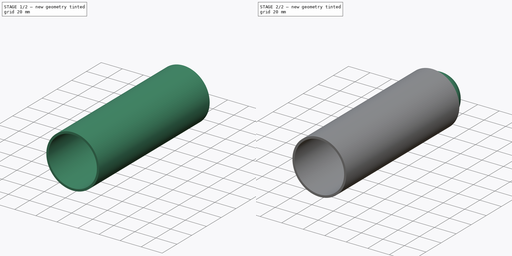
[diagram: build sequence overview — one tinted view per stage of 2, left to right]
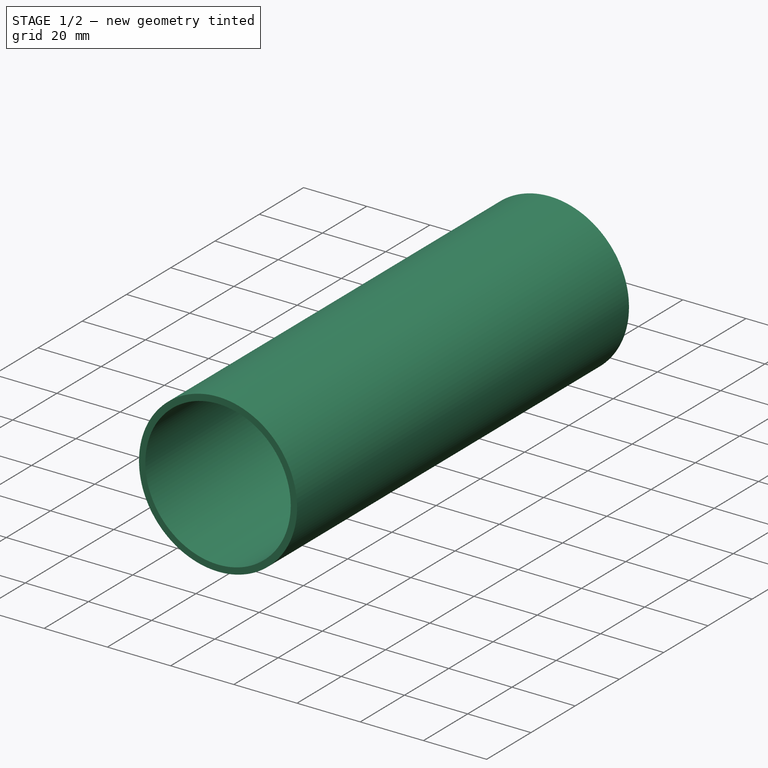
[diagram: stage 1 of 2 — iso view after this stage's code; geometry added in this stage tinted green]
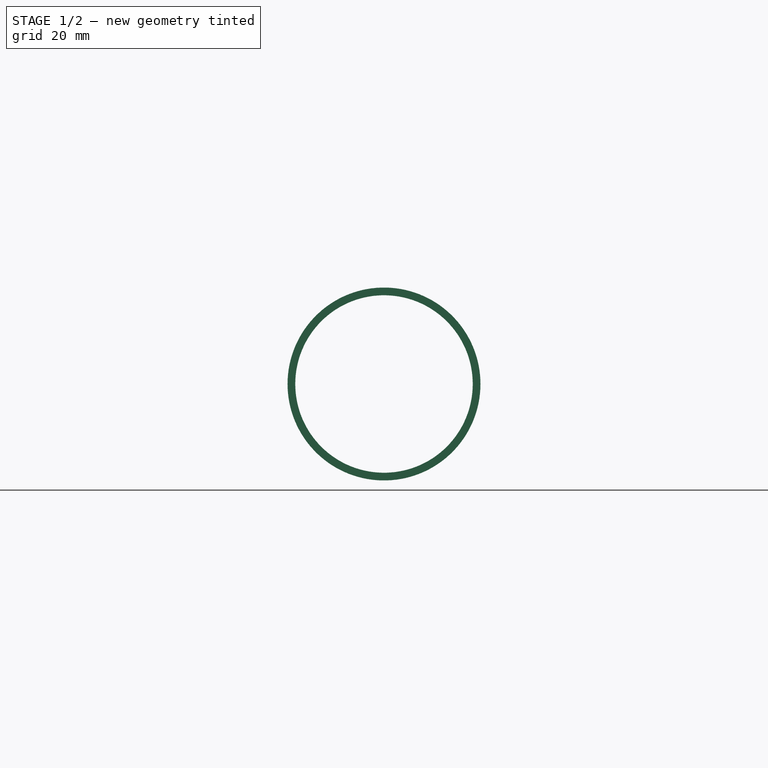
[diagram: stage 1 of 2 — front view after this stage's code; geometry added in this stage tinted green]
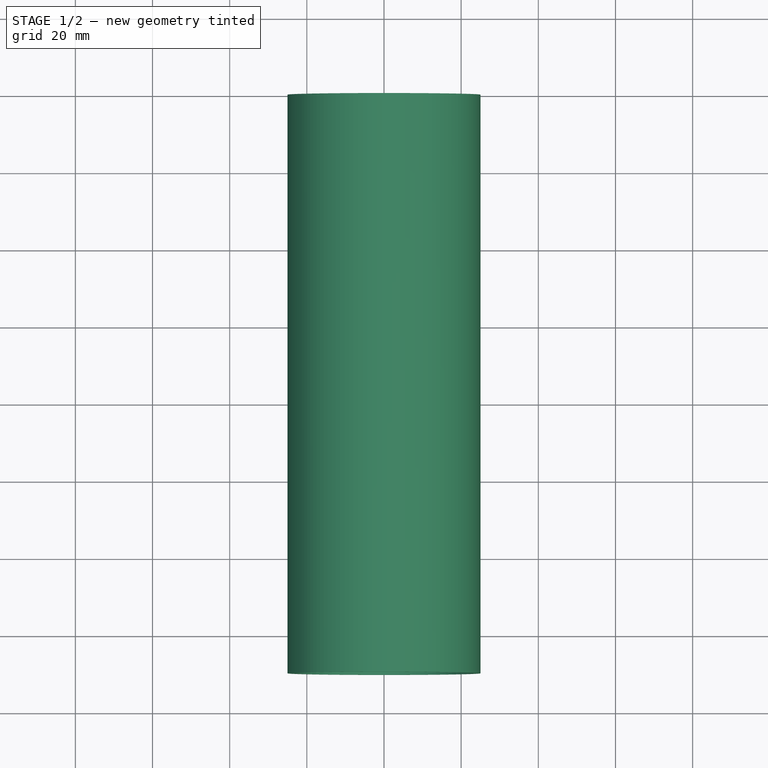
[diagram: stage 1 of 2 — top view after this stage's code; geometry added in this stage tinted green]
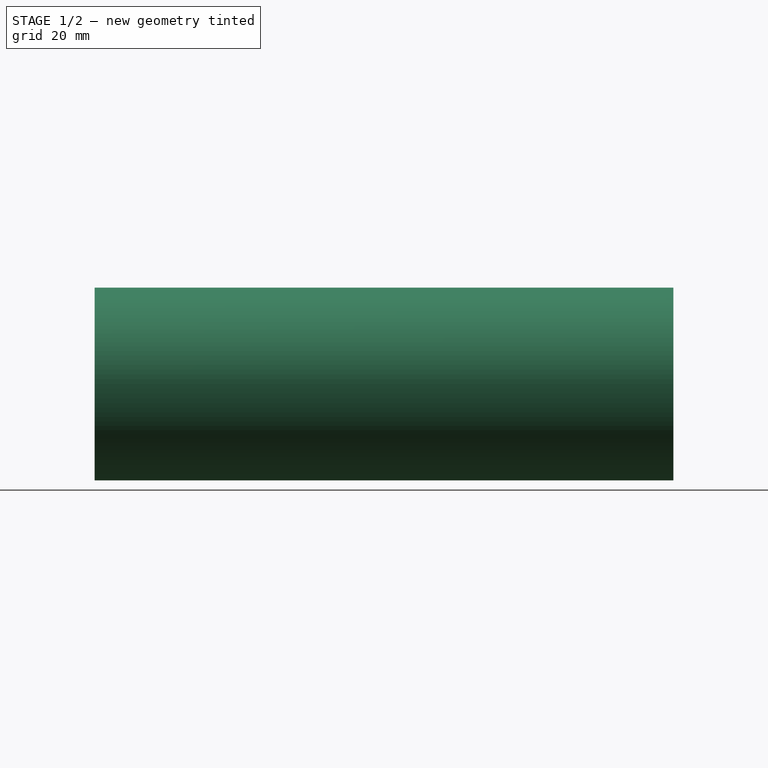
[diagram: stage 1 of 2 — right view after this stage's code; geometry added in this stage tinted green]
FCSTD DOCUMENT  (FreeCAD 0.19R)
Label: BDD
License: All rights reserved
LicenseURL: http://en.wikipedia.org/wiki/All_rights_reserved
objects: Part::Feature×18, PartDesign::Body×2, Sketcher::SketchObject×2, Part::Compound2×1, PartDesign::AdditiveSphere×1, PartDesign::Pad×1, PartDesign::Pocket×1
note: 28 computed .brp shape members not serialized (recipe doc carries the construction recipe); baked Part::Feature solids carry a one-line shape summary decoded from their .brp

FEATURE [PartDesign::Body] Body  label="Ball"
  Group = -> [Sphere]
  Origin = -> Origin
  Placement = pos=(0,3,36) rot=(0,0,1;0rad)
  Tip = -> Sphere
FEATURE [Part::Feature] Solid019  label="BDD_frame"
  shape: bbox 72.45 x 68.54 x 67 mm, 45 faces (baked)
FEATURE [Sketcher::SketchObject] Sketch
  FullyConstrained = true
  MapMode = 5
  Placement = pos=(0,0,0) rot=(1,0,0;1.5708rad)
  Support = -> [XZ_Plane001]
  sketch-geometry (1):
    g0: Circle CenterX=0 CenterY=0 CenterZ=0 NormalX=0 NormalY=0 NormalZ=1 AngleXU=0 Radius=25
  constraints (2):
    c: Coincident(g0,g-1)
    c: Diameter(g0) = 50
FEATURE [PartDesign::Pad] Pad
  Direction = (1,1,1)
  Length = 150
  Length2 = 100
  Placement = pos=(0,0,0) rot=(1,0,0;1.5708rad)
  Profile = -> Sketch
  Type = 0
FEATURE [Sketcher::SketchObject] Sketch001
  FullyConstrained = true
  MapMode = 5
  Placement = pos=(0,0,0) rot=(-1,0,0;1.5708rad)
  Support = -> [Pad]
  sketch-geometry (1):
    g0: Circle CenterX=0 CenterY=0 CenterZ=0 NormalX=0 NormalY=0 NormalZ=1 AngleXU=0 Radius=23
  constraints (2):
    c: Coincident(g0,g-1)
    c: Diameter(g0) = 46
FEATURE [PartDesign::Pocket] Pocket
  BaseFeature = -> Pad
  Length = 5
  Length2 = 100
  Placement = pos=(0,0,0) rot=(1,0,0;1.5708rad)
  Profile = -> Sketch001
  Type = 1
FEATURE [PartDesign::Body] Body001  label="pipe"
  Group = -> [Sketch,Pad,Sketch001,Pocket]
  Origin = -> Origin001
  Placement = pos=(0,176,36) rot=(0,0,1;0rad)
  Tip = -> Pocket
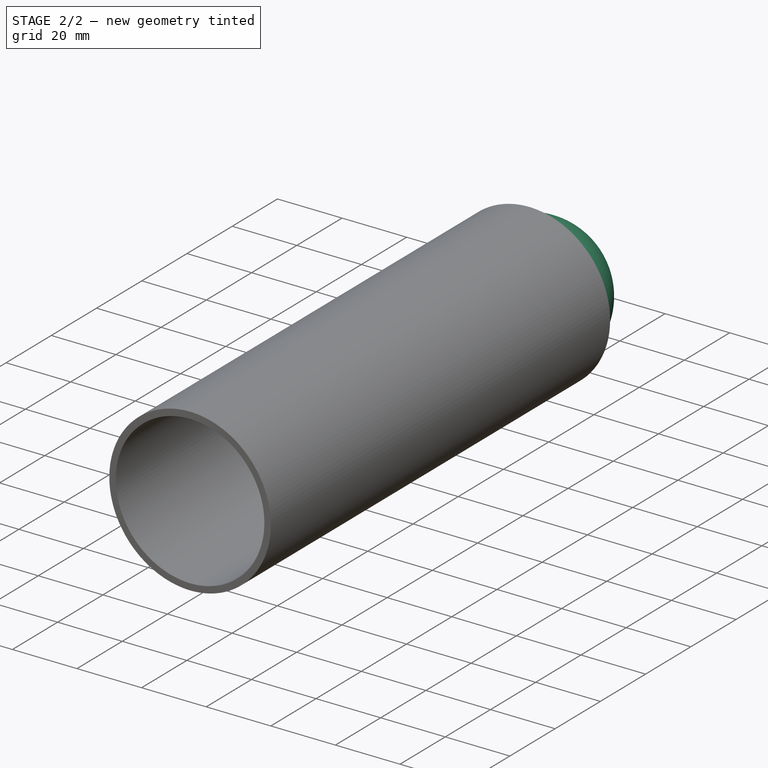
[diagram: stage 2 of 2 — iso view after this stage's code; geometry added in this stage tinted green]
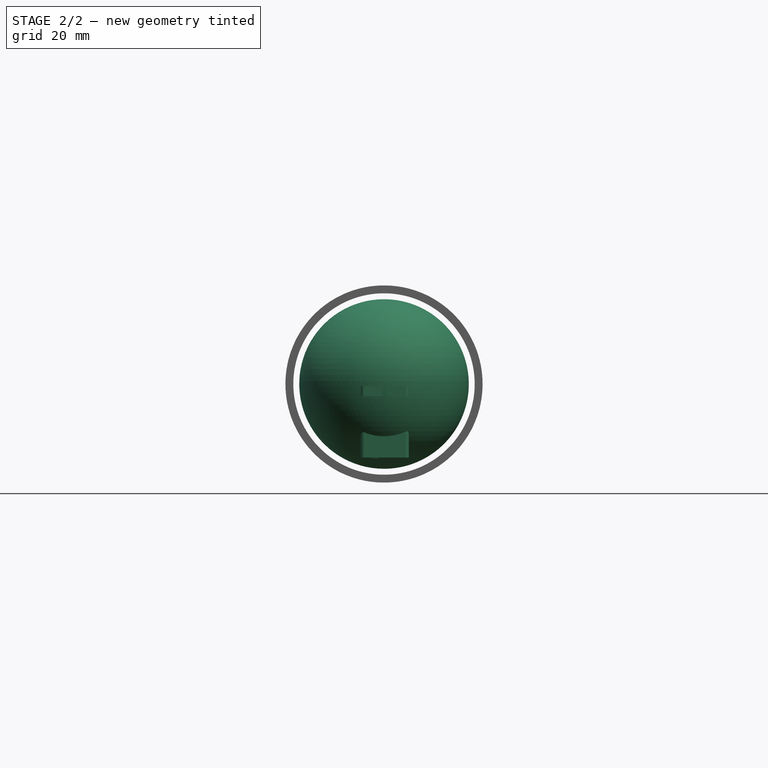
[diagram: stage 2 of 2 — front view after this stage's code; geometry added in this stage tinted green]
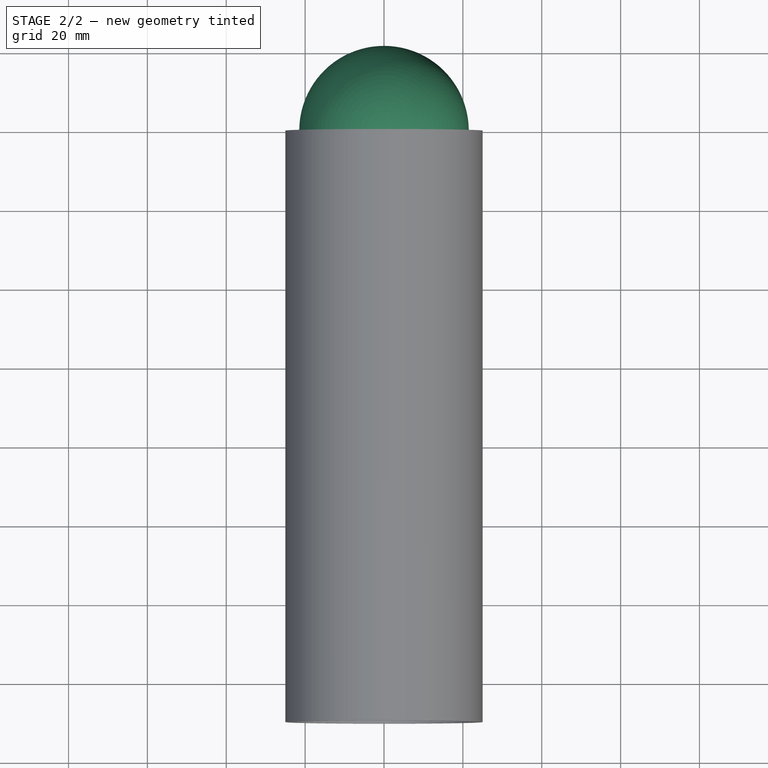
[diagram: stage 2 of 2 — top view after this stage's code; geometry added in this stage tinted green]
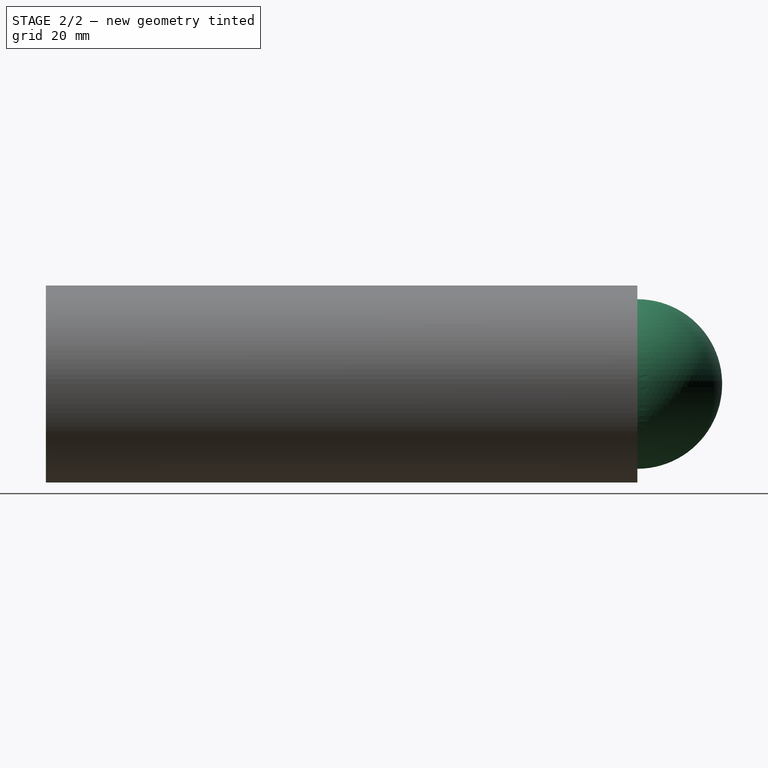
[diagram: stage 2 of 2 — right view after this stage's code; geometry added in this stage tinted green]
FEATURE [Part::Feature] Solid003  label="BDD_distributor"
  Placement = pos=(0,0,13) rot=(0,0,1;0rad)
  shape: bbox 50 x 50 x 54 mm, 17 faces (baked)
FEATURE [Part::Feature] Solid006  label="BDD_cover002"
  Placement = pos=(0,0,68) rot=(0,1,0;3.14159rad)
  shape: bbox 55 x 55 x 7 mm, 29 faces (baked)
FEATURE [Part::Feature] Feature  label="Servo_Futaba_S3154"
  Placement = pos=(0,0,-1) rot=(0,0,1;0rad)
  shape: bbox 23.21 x 29.41 x 29.03 mm, 392 faces, 13 solids (baked)
FEATURE [Part::Feature] Solid
  shape: bbox 22.5 x 10.3 x 12.2 mm, 10 faces (baked)
FEATURE [Part::Feature] Solid007
  shape: bbox 17 x 13 x 0.1 mm, 50 faces (baked)
FEATURE [Part::Feature] Solid008
  shape: bbox 17 x 13 x 0.1 mm, 50 faces (baked)
FEATURE [Part::Feature] Solid009 .. Solid012  x4 (patterned run collapsed; names and placements below)
  shape: bbox 1.933 x 1 x 1.949 mm, 19 faces (baked)
FEATURE [Part::Feature] Solid013
  shape: bbox 22.64 x 5.5 x 12.34 mm, 157 faces (baked)
FEATURE [Part::Feature] Solid014
  shape: bbox 3 x 1 x 1 mm, 4 faces (baked)
FEATURE [Part::Feature] Solid015
  shape: bbox 3 x 1 x 1 mm, 4 faces (baked)
FEATURE [Part::Feature] Solid016
  shape: bbox 3 x 1 x 1 mm, 4 faces (baked)
FEATURE [Part::Feature] Solid017
  shape: bbox 32.1 x 11.05 x 13.21 mm, 102 faces (baked)
FEATURE [Part::Feature] Solid018
  shape: bbox 4.9 x 7.35 x 4.9 mm, 186 faces (baked)
FEATURE [Part::Compound2] Compound  label="SG90 Servo"
  Links = -> [Solid,Solid007,Solid008,Solid009,Solid010,Solid011,Solid012,Solid013,Solid014,Solid015,Solid016,Solid017,Solid018]
  Placement = pos=(28,1,-25) rot=(0.57735,-0.57735,-0.57735;2.0944rad)
FEATURE [Part::Feature] Feature001  label="SKF_609"
  Placement = pos=(0,0,67) rot=(0,1,0;1.5708rad)
  shape: bbox 23.81 x 23.81 x 7 mm, 27 faces, 9 solids (baked)
FEATURE [PartDesign::AdditiveSphere] Sphere
  Angle1 = -90
  Angle2 = 90
  Angle3 = 360
  AttacherType = Attacher::AttachEngine3D
  Radius = 21.5
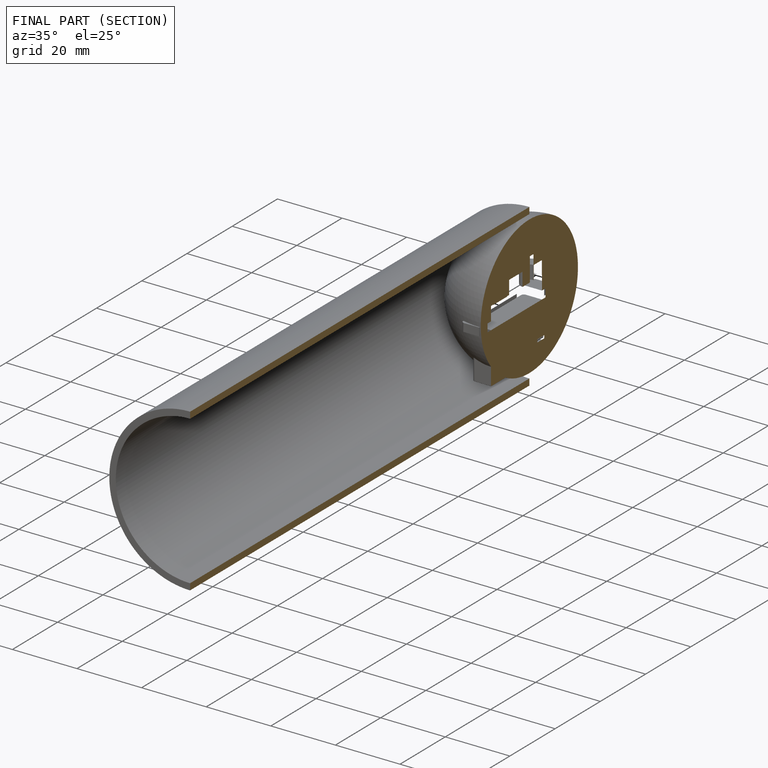
[diagram: finished part — half-section view (interior)]
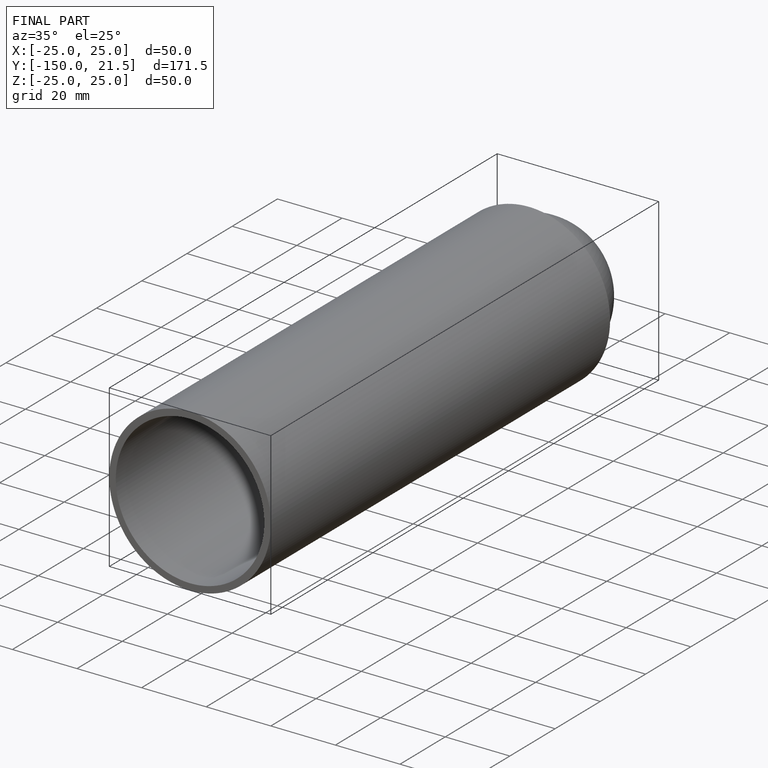
[diagram: finished part — iso view with bounding-box wireframe]
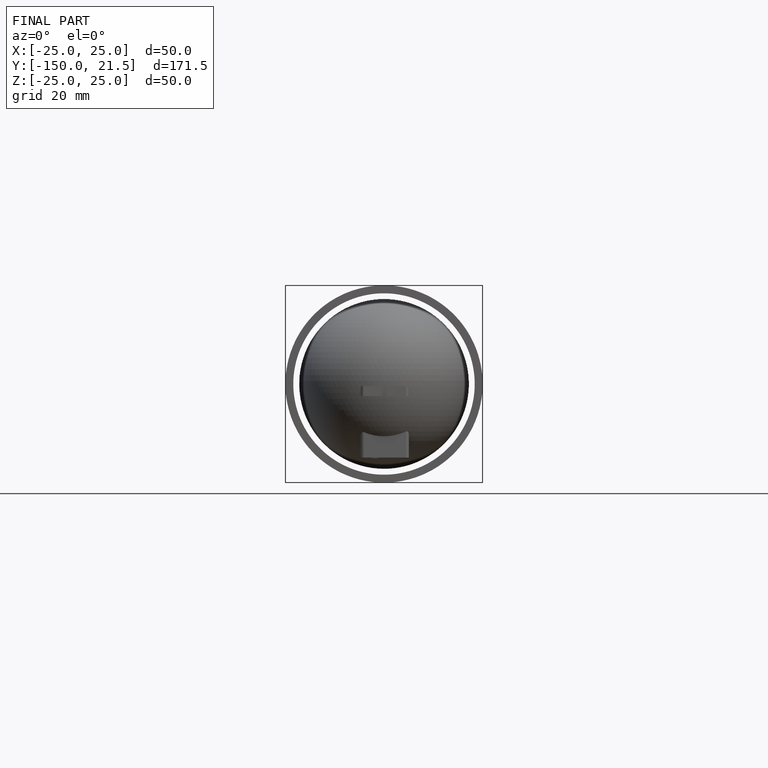
[diagram: finished part — front view with bounding-box wireframe]
